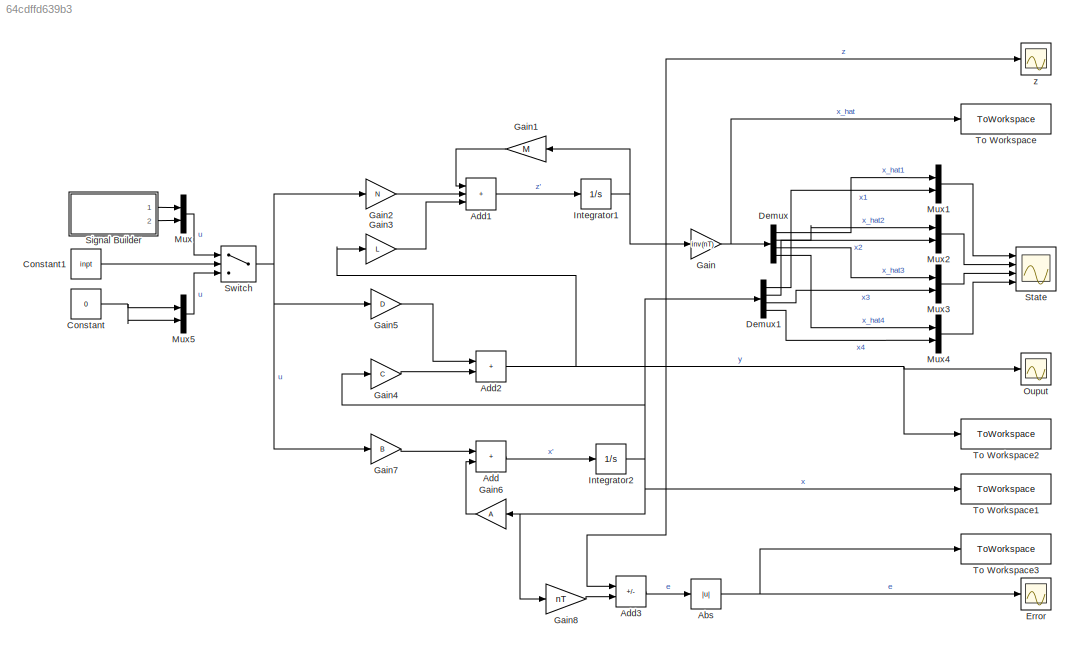
MODEL slx_64cdffd639b3
KIND model
CONFIG AbsTol = auto
CONFIG EnableMultiTasking = off
CONFIG FixedStep = 0.01
CONFIG MaxStep = auto
CONFIG MinStep = auto
CONFIG RelTol = 1e-3
CONFIG SampleTimeConstraint = Unconstrained
CONFIG Solver = FixedStepAuto
CONFIG SolverName = FixedStepAuto
CONFIG StartTime = 0.0
CONFIG StopTime = t
BLOCK [Abs] Abs
  SaturateOnIntegerOverflow = off
BLOCK [Sum] Add
  IconShape = rectangular
  Ports = [2, 1]
BLOCK [Sum] Add1
  IconShape = rectangular
  Inputs = +++
  Ports = [3, 1]
BLOCK [Sum] Add2
  IconShape = rectangular
  Ports = [2, 1]
BLOCK [Sum] Add3
  IconShape = rectangular
  Inputs = +-
  Ports = [2, 1]
BLOCK [Constant] Constant
  Value = 0
BLOCK [Constant] Constant1
  Value = inpt
BLOCK [Demux] Demux
  Ports = [1, 4]
BLOCK [Demux] Demux1
  Ports = [1, 4]
BLOCK [Scope] Error
  Floating = off
  NumInputPorts = 1
  Ports = [1]
  ScopeSpecificationString = Simulink.scopes.TimeScopeBlockCfg('CurrentConfiguration', extmgr.ConfigurationSet(extmgr.Configuration('Core','General UI',true),extmgr.Configuration('Core','Source UI',true),extmgr.Configuration('Sources','WiredSimulink',true,'DataLoggingVariableName','ScopeData2'),extmgr.Configuration('Visuals','Time Domain',true,'SerializedDisplays',{struct('MinYLimReal','-6.13279','MaxYLimReal','55.19512','YLa...<+1429ch>
BLOCK [Gain] Gain
  Gain = inv(nT)
  Multiplication = Matrix(K*u)
BLOCK [Gain] Gain1
  Gain = M
  Multiplication = Matrix(K*u)
BLOCK [Gain] Gain2
  Gain = N
  Multiplication = Matrix(K*u)
BLOCK [Gain] Gain3
  Gain = L
  Multiplication = Matrix(K*u)
BLOCK [Gain] Gain4
  Gain = C
  Multiplication = Matrix(K*u)
BLOCK [Gain] Gain5
  Gain = D
  Multiplication = Matrix(K*u)
BLOCK [Gain] Gain6
  Gain = A
  Multiplication = Matrix(K*u)
BLOCK [Gain] Gain7
  Gain = B
  Multiplication = Matrix(K*u)
BLOCK [Gain] Gain8
  Gain = nT
  Multiplication = Matrix(K*u)
BLOCK [Integrator] Integrator1
  InitialCondition = z0
  Ports = [1, 1]
BLOCK [Integrator] Integrator2
  InitialCondition = x0
  Ports = [1, 1]
BLOCK [Mux] Mux
  DisplayOption = bar
  Inputs = 2
  Ports = [2, 1]
BLOCK [Mux] Mux1
  DisplayOption = bar
  Inputs = 2
  Ports = [2, 1]
BLOCK [Mux] Mux2
  DisplayOption = bar
  Inputs = 2
  Ports = [2, 1]
BLOCK [Mux] Mux3
  DisplayOption = bar
  Inputs = 2
  Ports = [2, 1]
BLOCK [Mux] Mux4
  DisplayOption = bar
  Inputs = 2
  Ports = [2, 1]
BLOCK [Mux] Mux5
  DisplayOption = bar
  Inputs = 2
  Ports = [2, 1]
BLOCK [Scope] Ouput
  Floating = off
  NumInputPorts = 1
  Ports = [1]
  ScopeSpecificationString = Simulink.scopes.TimeScopeBlockCfg('CurrentConfiguration', extmgr.ConfigurationSet(extmgr.Configuration('Core','General UI',true),extmgr.Configuration('Core','Source UI',true),extmgr.Configuration('Sources','WiredSimulink',true,'DataLoggingVariableName','ScopeData1'),extmgr.Configuration('Visuals','Time Domain',true,'SerializedDisplays',{struct('MinYLimReal','-339.52544','MaxYLimReal','81.17925','Y...<+1426ch>
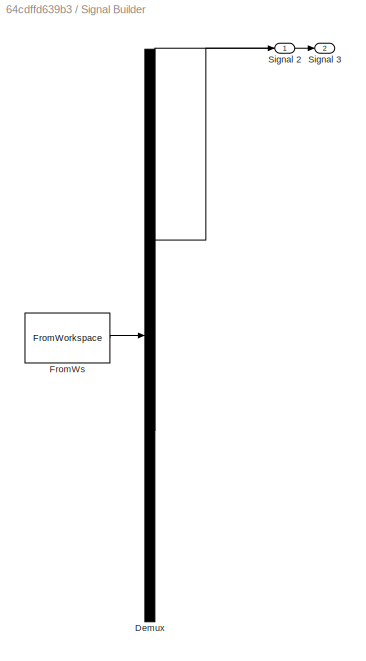
BLOCK [SubSystem] Signal Builder
  ClipboardFcn = sigbuilder_block('clipboard');
  CloseFcn = sigbuilder_block('close');
  ContinueFcn = sigbuilder_block('continue');
  CopyFcn = sigbuilder_block('copy');
  DeleteFcn = sigbuilder_block('delete');
  LoadFcn = sigbuilder_block('load');
  MaskHideContents = on
  ModelCloseFcn = sigbuilder_block('modelClose');
  NameChangeFcn = sigbuilder_block('namechange');
  OpenFcn = sigbuilder_block('open',[437.6 199.2 550.4 400 ]);
  PauseFcn = sigbuilder_block('pause');
  Ports = [0, 2]
  PreSaveFcn = sigbuilder_block('preSave');
  RequestExecContextInheritance = off
  StartFcn = sigbuilder_block('start');
  StopFcn = sigbuilder_block('stop');
  Tag = STV Subsys
BLOCK [Demux] Signal Builder/Demux
  DisplayOption = none
  Outputs = 2
  Ports = [1, 2]
  Tag = STV Demux
BLOCK [FromWorkspace] Signal Builder/FromWs
  Tag = STV FromWs
  VariableName = tuvar
BLOCK [Outport] Signal Builder/Signal 2
  Tag = STV Outport
BLOCK [Outport] Signal Builder/Signal 3
  Port = 2
  Tag = STV Outport
BLOCK [Scope] State
  Floating = off
  NumInputPorts = 4
  Ports = [4]
  ScopeSpecificationString = Simulink.scopes.TimeScopeBlockCfg('CurrentConfiguration', extmgr.ConfigurationSet(extmgr.Configuration('Core','General UI',true),extmgr.Configuration('Core','Source UI',true),extmgr.Configuration('Sources','WiredSimulink',true),extmgr.Configuration('Visuals','Time Domain',true,'SerializedDisplays',{struct('MinYLimReal','-27464.61725','MaxYLimReal','10148.23171','YLabelReal','','MinYLimMag','   0.0...<+3496ch>
BLOCK [Switch] Switch
  Criteria = u2 > Threshold
  InputSameDT = off
  SaturateOnIntegerOverflow = off
BLOCK [ToWorkspace] To Workspace
  FixptAsFi = on
  MaxDataPoints = inf
  Ports = [1]
  SampleTime = -1
  SaveFormat = Structure
  VariableName = estate
BLOCK [ToWorkspace] To Workspace1
  FixptAsFi = on
  MaxDataPoints = inf
  Ports = [1]
  SampleTime = -1
  SaveFormat = Structure
  VariableName = state
BLOCK [ToWorkspace] To Workspace2
  FixptAsFi = on
  MaxDataPoints = inf
  Ports = [1]
  SampleTime = -1
  SaveFormat = Structure
  VariableName = output
BLOCK [ToWorkspace] To Workspace3
  FixptAsFi = on
  MaxDataPoints = inf
  Ports = [1]
  SampleTime = -1
  SaveFormat = Structure
  VariableName = error
BLOCK [Scope] z
  Floating = off
  NumInputPorts = 1
  Ports = [1]
  ScopeSpecificationString = Simulink.scopes.TimeScopeBlockCfg('CurrentConfiguration', extmgr.ConfigurationSet(extmgr.Configuration('Core','General UI',true),extmgr.Configuration('Core','Source UI',true),extmgr.Configuration('Sources','WiredSimulink',true,'DataLoggingVariableName','ScopeData1'),extmgr.Configuration('Visuals','Time Domain',true,'SerializedDisplays',{struct('MinYLimReal','-81.7132','MaxYLimReal','14.6348','YLab...<+1425ch>
NET Abs:1 -> Error:1, To Workspace3:1
LINE Add1:1 -> Integrator1:1
NET Add2:1 -> Gain3:1, Ouput:1, To Workspace2:1
LINE Add3:1 -> Abs:1
LINE Add:1 -> Integrator2:1
LINE Constant1:1 -> Switch:2
NET Constant:1 -> Mux5:1, Mux5:2
LINE Demux1:1 -> Mux1:2
LINE Demux1:2 -> Mux2:2
LINE Demux1:3 -> Mux3:2
LINE Demux1:4 -> Mux4:2
LINE Demux:1 -> Mux1:1
LINE Demux:2 -> Mux2:1
LINE Demux:3 -> Mux3:1
LINE Demux:4 -> Mux4:1
LINE Gain1:1 -> Add1:1
LINE Gain2:1 -> Add1:2
LINE Gain3:1 -> Add1:3
LINE Gain4:1 -> Add2:2
LINE Gain5:1 -> Add2:1
LINE Gain6:1 -> Add:2
LINE Gain7:1 -> Add:1
LINE Gain8:1 -> Add3:2
NET Gain:1 -> Demux:1, To Workspace:1
NET Integrator1:1 -> Add3:1, Gain1:1, Gain:1, z:1
NET Integrator2:1 -> Demux1:1, Gain4:1, Gain6:1, Gain8:1, To Workspace1:1
LINE Mux1:1 -> State:1
LINE Mux2:1 -> State:2
LINE Mux3:1 -> State:3
LINE Mux4:1 -> State:4
LINE Mux5:1 -> Switch:3
LINE Mux:1 -> Switch:1
LINE Signal Builder:1 -> Mux:1
LINE Signal Builder:2 -> Mux:2
NET Switch:1 -> Gain2:1, Gain5:1, Gain7:1
note: NET lines group one-source signal fan-out (src -> all destinations, sorted); 1:1 wires keep LINE
